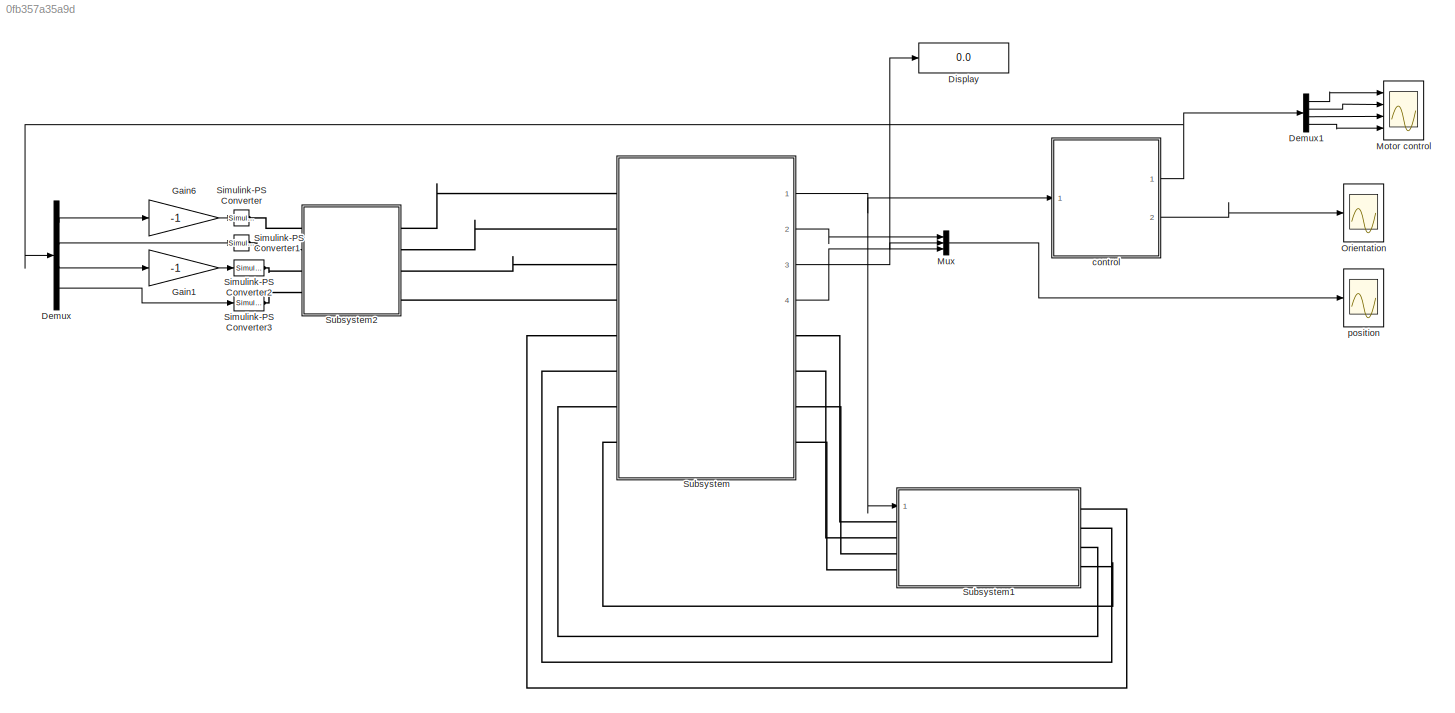
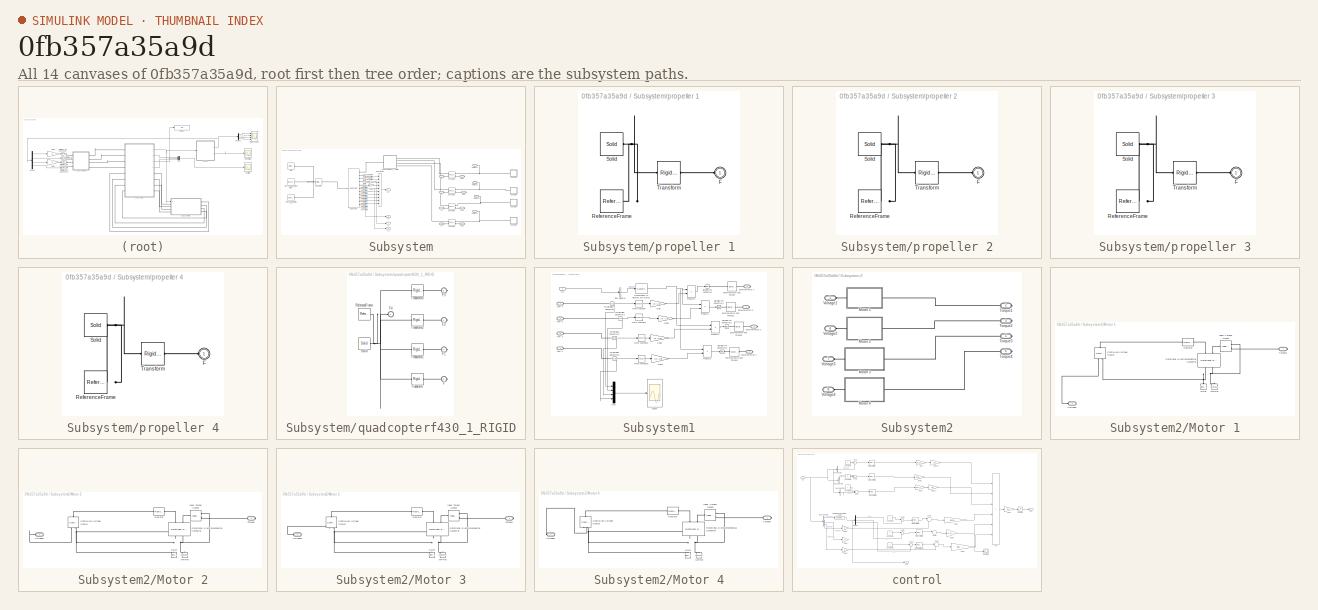
[diagram: thumbnail index - all 14 canvases of the model, root first then tree order]
MODEL slx_0fb357a35a9d
KIND model
CONFIG AbsTol = auto
CONFIG EnableMultiTasking = off
CONFIG FixedStep = auto
CONFIG MaxStep = auto
CONFIG MinStep = auto
CONFIG RelTol = 1e-3
CONFIG SampleTimeConstraint = Unconstrained
CONFIG Solver = VariableStepAuto
CONFIG SolverName = VariableStepAuto
CONFIG StartTime = 0.0
CONFIG StopTime = 30
WORKSPACE source: external: MATLAB File  (data not in archive)
BLOCK [Demux] Demux
  Ports = [1, 4]
BLOCK [Demux] Demux1
  Ports = [1, 4]
BLOCK [Display] Display
  Decimation = 1
  Ports = [1]
BLOCK [Gain] Gain1
  Gain = -1
BLOCK [Gain] Gain6
  Gain = -1
BLOCK [Scope] Motor control
  Floating = off
  NumInputPorts = 4
  Ports = [4]
  ScopeSpecificationString = Simulink.scopes.TimeScopeBlockCfg('CurrentConfiguration', extmgr.ConfigurationSet(extmgr.Configuration('Core','General UI',true),extmgr.Configuration('Core','Source UI',true),extmgr.Configuration('Sources','WiredSimulink',true,'DataLoggingVariableName','ScopeData2'),extmgr.Configuration('Visuals','Time Domain',true,'SerializedDisplays',{struct('MinYLimReal','-3.3646','MaxYLimReal','10.00000','YLab...<+3989ch>
BLOCK [Mux] Mux
  DisplayOption = bar
  Inputs = 3
  Ports = [3, 1]
BLOCK [Scope] Orientation
  Floating = off
  NumInputPorts = 1
  Ports = [1]
  ScopeSpecificationString = Simulink.scopes.TimeScopeBlockCfg('CurrentConfiguration', extmgr.ConfigurationSet(extmgr.Configuration('Core','General UI',true),extmgr.Configuration('Core','Source UI',true),extmgr.Configuration('Sources','WiredSimulink',true,'DataLoggingVariableName','ScopeData1'),extmgr.Configuration('Visuals','Time Domain',true,'PlotType','Line','SerializedDisplays',{struct('MinYLimReal','-0.03172','MaxYLimRea...<+1662ch>
BLOCK [Reference] Simulink-PS Converter  REF=nesl_utility/Simulink-PS
Converter
  Ports = [1, 0, 0, 0, 0, 0, 1]
  SourceBlock = nesl_utility/Simulink-PS\nConverter
  SourceProductBaseCode = SS
  SourceType = Simulink-PS\nConverter
BLOCK [Reference] Simulink-PS Converter1  REF=nesl_utility/Simulink-PS
Converter
  Ports = [1, 0, 0, 0, 0, 0, 1]
  SourceBlock = nesl_utility/Simulink-PS\nConverter
  SourceProductBaseCode = SS
  SourceType = Simulink-PS\nConverter
BLOCK [Reference] Simulink-PS Converter2  REF=nesl_utility/Simulink-PS
Converter
  Ports = [1, 0, 0, 0, 0, 0, 1]
  SourceBlock = nesl_utility/Simulink-PS\nConverter
  SourceProductBaseCode = SS
  SourceType = Simulink-PS\nConverter
BLOCK [Reference] Simulink-PS Converter3  REF=nesl_utility/Simulink-PS
Converter
  Ports = [1, 0, 0, 0, 0, 0, 1]
  SourceBlock = nesl_utility/Simulink-PS\nConverter
  SourceProductBaseCode = SS
  SourceType = Simulink-PS\nConverter
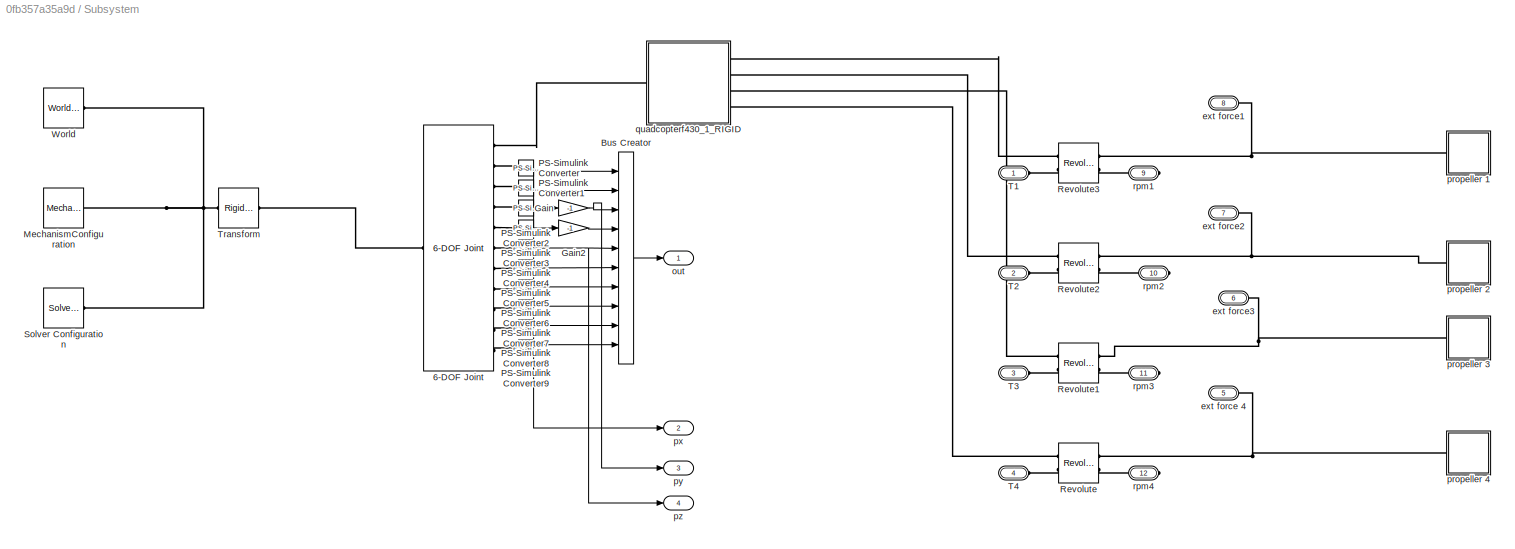
BLOCK [SubSystem] Subsystem
  Ports = [0, 4, 0, 0, 0, 8, 4]
  RequestExecContextInheritance = off
BLOCK [Reference] Subsystem/6-DOF Joint  REF=sm_lib/Joints/6-DOF Joint
  Ports = [0, 0, 0, 0, 0, 1, 11]
  SourceBlock = sm_lib/Joints/6-DOF Joint
  SourceProductBaseCode = MS
  SourceType = 6-DOF Joint
BLOCK [BusCreator] Subsystem/Bus Creator
  DisplayOption = bar
  InheritFromInputs = on
  Inputs = 10
  Ports = [10, 1]
BLOCK [Gain] Subsystem/Gain
  Gain = -1
BLOCK [Gain] Subsystem/Gain2
  Gain = -1
BLOCK [Reference] Subsystem/MechanismConfiguration  REF=sm_lib/Utilities/Mechanism
Configuration
  Ports = [0, 0, 0, 0, 0, 0, 1]
  SourceBlock = sm_lib/Utilities/Mechanism\nConfiguration
  SourceProductBaseCode = MS
  SourceType = Mechanism\nConfiguration
BLOCK [Reference] Subsystem/PS-Simulink Converter  REF=nesl_utility/PS-Simulink
Converter
  Ports = [0, 1, 0, 0, 0, 1]
  SourceBlock = nesl_utility/PS-Simulink\nConverter
  SourceProductBaseCode = SS
  SourceType = PS-Simulink\nConverter
BLOCK [Reference] Subsystem/PS-Simulink Converter1  REF=nesl_utility/PS-Simulink
Converter
  Ports = [0, 1, 0, 0, 0, 1]
  SourceBlock = nesl_utility/PS-Simulink\nConverter
  SourceProductBaseCode = SS
  SourceType = PS-Simulink\nConverter
BLOCK [Reference] Subsystem/PS-Simulink Converter2  REF=nesl_utility/PS-Simulink
Converter
  Ports = [0, 1, 0, 0, 0, 1]
  SourceBlock = nesl_utility/PS-Simulink\nConverter
  SourceProductBaseCode = SS
  SourceType = PS-Simulink\nConverter
BLOCK [Reference] Subsystem/PS-Simulink Converter3  REF=nesl_utility/PS-Simulink
Converter
  Ports = [0, 1, 0, 0, 0, 1]
  SourceBlock = nesl_utility/PS-Simulink\nConverter
  SourceProductBaseCode = SS
  SourceType = PS-Simulink\nConverter
BLOCK [Reference] Subsystem/PS-Simulink Converter4  REF=nesl_utility/PS-Simulink
Converter
  Ports = [0, 1, 0, 0, 0, 1]
  SourceBlock = nesl_utility/PS-Simulink\nConverter
  SourceProductBaseCode = SS
  SourceType = PS-Simulink\nConverter
BLOCK [Reference] Subsystem/PS-Simulink Converter5  REF=nesl_utility/PS-Simulink
Converter
  Ports = [0, 1, 0, 0, 0, 1]
  SourceBlock = nesl_utility/PS-Simulink\nConverter
  SourceProductBaseCode = SS
  SourceType = PS-Simulink\nConverter
BLOCK [Reference] Subsystem/PS-Simulink Converter6  REF=nesl_utility/PS-Simulink
Converter
  Ports = [0, 1, 0, 0, 0, 1]
  SourceBlock = nesl_utility/PS-Simulink\nConverter
  SourceProductBaseCode = SS
  SourceType = PS-Simulink\nConverter
BLOCK [Reference] Subsystem/PS-Simulink Converter7  REF=nesl_utility/PS-Simulink
Converter
  Ports = [0, 1, 0, 0, 0, 1]
  SourceBlock = nesl_utility/PS-Simulink\nConverter
  SourceProductBaseCode = SS
  SourceType = PS-Simulink\nConverter
BLOCK [Reference] Subsystem/PS-Simulink Converter8  REF=nesl_utility/PS-Simulink
Converter
  Ports = [0, 1, 0, 0, 0, 1]
  SourceBlock = nesl_utility/PS-Simulink\nConverter
  SourceProductBaseCode = SS
  SourceType = PS-Simulink\nConverter
BLOCK [Reference] Subsystem/PS-Simulink Converter9  REF=nesl_utility/PS-Simulink
Converter
  Ports = [0, 1, 0, 0, 0, 1]
  SourceBlock = nesl_utility/PS-Simulink\nConverter
  SourceProductBaseCode = SS
  SourceType = PS-Simulink\nConverter
BLOCK [Reference] Subsystem/Revolute  REF=sm_lib/Joints/Revolute Joint
  Ports = [0, 0, 0, 0, 0, 2, 2]
  SourceBlock = sm_lib/Joints/Revolute Joint
  SourceProductBaseCode = MS
  SourceType = Revolute Joint
BLOCK [Reference] Subsystem/Revolute1  REF=sm_lib/Joints/Revolute Joint
  Ports = [0, 0, 0, 0, 0, 2, 2]
  SourceBlock = sm_lib/Joints/Revolute Joint
  SourceProductBaseCode = MS
  SourceType = Revolute Joint
BLOCK [Reference] Subsystem/Revolute2  REF=sm_lib/Joints/Revolute Joint
  Ports = [0, 0, 0, 0, 0, 2, 2]
  SourceBlock = sm_lib/Joints/Revolute Joint
  SourceProductBaseCode = MS
  SourceType = Revolute Joint
BLOCK [Reference] Subsystem/Revolute3  REF=sm_lib/Joints/Revolute Joint
  Ports = [0, 0, 0, 0, 0, 2, 2]
  SourceBlock = sm_lib/Joints/Revolute Joint
  SourceProductBaseCode = MS
  SourceType = Revolute Joint
BLOCK [Reference] Subsystem/Solver Configuration  REF=nesl_utility/Solver
Configuration
  Ports = [0, 0, 0, 0, 0, 0, 1]
  SourceBlock = nesl_utility/Solver\nConfiguration
  SourceProductBaseCode = SS
  SourceType = Solver\nConfiguration
BLOCK [PMIOPort] Subsystem/T1
  Side = Left
BLOCK [PMIOPort] Subsystem/T2
  Port = 2
  Side = Left
BLOCK [PMIOPort] Subsystem/T3
  Port = 3
  Side = Left
BLOCK [PMIOPort] Subsystem/T4
  Port = 4
  Side = Left
BLOCK [Reference] Subsystem/Transform  REF=sm_lib/Frames and
Transforms/Rigid
Transform
  Ports = [0, 0, 0, 0, 0, 1, 1]
  SourceBlock = sm_lib/Frames and\nTransforms/Rigid\nTransform
  SourceProductBaseCode = MS
  SourceType = Rigid\nTransform
BLOCK [Reference] Subsystem/World  REF=sm_lib/Frames and
Transforms/World Frame
  Ports = [0, 0, 0, 0, 0, 0, 1]
  SourceBlock = sm_lib/Frames and\nTransforms/World Frame
  SourceProductBaseCode = MS
  SourceType = World Frame
BLOCK [PMIOPort] Subsystem/ext force 4
  Port = 5
  Side = Left
BLOCK [PMIOPort] Subsystem/ext force1
  Port = 8
  Side = Left
BLOCK [PMIOPort] Subsystem/ext force2
  Port = 7
  Side = Left
BLOCK [PMIOPort] Subsystem/ext force3
  Port = 6
  Side = Left
BLOCK [Outport] Subsystem/out
BLOCK [SubSystem] Subsystem/propeller 1
  Ports = [0, 0, 0, 0, 0, 1]
  RequestExecContextInheritance = off
BLOCK [PMIOPort] Subsystem/propeller 1/F
  Side = Left
BLOCK [Reference] Subsystem/propeller 1/ReferenceFrame  REF=sm_lib/Frames and
Transforms/Reference
Frame
  Ports = [0, 0, 0, 0, 0, 0, 1]
  SourceBlock = sm_lib/Frames and\nTransforms/Reference\nFrame
  SourceProductBaseCode = MS
  SourceType = Reference\nFrame
BLOCK [Reference] Subsystem/propeller 1/Solid  REF=sm_lib/Body Elements/Solid
  Ports = [0, 0, 0, 0, 0, 0, 1]
  SourceBlock = sm_lib/Body Elements/Solid
  SourceProductBaseCode = MS
  SourceType = File Solid
BLOCK [Reference] Subsystem/propeller 1/Transform  REF=sm_lib/Frames and
Transforms/Rigid
Transform
  Ports = [0, 0, 0, 0, 0, 1, 1]
  SourceBlock = sm_lib/Frames and\nTransforms/Rigid\nTransform
  SourceProductBaseCode = MS
  SourceType = Rigid\nTransform
BLOCK [SubSystem] Subsystem/propeller 2
  Ports = [0, 0, 0, 0, 0, 1]
  RequestExecContextInheritance = off
BLOCK [PMIOPort] Subsystem/propeller 2/F
  Side = Left
BLOCK [Reference] Subsystem/propeller 2/ReferenceFrame  REF=sm_lib/Frames and
Transforms/Reference
Frame
  Ports = [0, 0, 0, 0, 0, 0, 1]
  SourceBlock = sm_lib/Frames and\nTransforms/Reference\nFrame
  SourceProductBaseCode = MS
  SourceType = Reference\nFrame
BLOCK [Reference] Subsystem/propeller 2/Solid  REF=sm_lib/Body Elements/Solid
  Ports = [0, 0, 0, 0, 0, 0, 1]
  SourceBlock = sm_lib/Body Elements/Solid
  SourceProductBaseCode = MS
  SourceType = File Solid
BLOCK [Reference] Subsystem/propeller 2/Transform  REF=sm_lib/Frames and
Transforms/Rigid
Transform
  Ports = [0, 0, 0, 0, 0, 1, 1]
  SourceBlock = sm_lib/Frames and\nTransforms/Rigid\nTransform
  SourceProductBaseCode = MS
  SourceType = Rigid\nTransform
BLOCK [SubSystem] Subsystem/propeller 3
  Ports = [0, 0, 0, 0, 0, 1]
  RequestExecContextInheritance = off
BLOCK [PMIOPort] Subsystem/propeller 3/F
  Side = Left
BLOCK [Reference] Subsystem/propeller 3/ReferenceFrame  REF=sm_lib/Frames and
Transforms/Reference
Frame
  Ports = [0, 0, 0, 0, 0, 0, 1]
  SourceBlock = sm_lib/Frames and\nTransforms/Reference\nFrame
  SourceProductBaseCode = MS
  SourceType = Reference\nFrame
BLOCK [Reference] Subsystem/propeller 3/Solid  REF=sm_lib/Body Elements/Solid
  Ports = [0, 0, 0, 0, 0, 0, 1]
  SourceBlock = sm_lib/Body Elements/Solid
  SourceProductBaseCode = MS
  SourceType = File Solid
BLOCK [Reference] Subsystem/propeller 3/Transform  REF=sm_lib/Frames and
Transforms/Rigid
Transform
  Ports = [0, 0, 0, 0, 0, 1, 1]
  SourceBlock = sm_lib/Frames and\nTransforms/Rigid\nTransform
  SourceProductBaseCode = MS
  SourceType = Rigid\nTransform
BLOCK [SubSystem] Subsystem/propeller 4
  Ports = [0, 0, 0, 0, 0, 1]
  RequestExecContextInheritance = off
BLOCK [PMIOPort] Subsystem/propeller 4/F
  Side = Left
BLOCK [Reference] Subsystem/propeller 4/ReferenceFrame  REF=sm_lib/Frames and
Transforms/Reference
Frame
  Ports = [0, 0, 0, 0, 0, 0, 1]
  SourceBlock = sm_lib/Frames and\nTransforms/Reference\nFrame
  SourceProductBaseCode = MS
  SourceType = Reference\nFrame
BLOCK [Reference] Subsystem/propeller 4/Solid  REF=sm_lib/Body Elements/Solid
  Ports = [0, 0, 0, 0, 0, 0, 1]
  SourceBlock = sm_lib/Body Elements/Solid
  SourceProductBaseCode = MS
  SourceType = File Solid
BLOCK [Reference] Subsystem/propeller 4/Transform  REF=sm_lib/Frames and
Transforms/Rigid
Transform
  Ports = [0, 0, 0, 0, 0, 1, 1]
  SourceBlock = sm_lib/Frames and\nTransforms/Rigid\nTransform
  SourceProductBaseCode = MS
  SourceType = Rigid\nTransform
BLOCK [Outport] Subsystem/px
  Port = 2
BLOCK [Outport] Subsystem/py
  Port = 3
BLOCK [Outport] Subsystem/pz
  Port = 4
BLOCK [SubSystem] Subsystem/quadcopterf430_1_RIGID
  Ports = [0, 0, 0, 0, 0, 1, 4]
  RequestExecContextInheritance = off
BLOCK [PMIOPort] Subsystem/quadcopterf430_1_RIGID/F
  Port = 5
  Side = Right
BLOCK [PMIOPort] Subsystem/quadcopterf430_1_RIGID/F1
  Port = 4
  Side = Right
BLOCK [PMIOPort] Subsystem/quadcopterf430_1_RIGID/F2
  Port = 3
  Side = Right
BLOCK [PMIOPort] Subsystem/quadcopterf430_1_RIGID/F3
  Port = 2
  Side = Right
BLOCK [PMIOPort] Subsystem/quadcopterf430_1_RIGID/F4
  Side = Left
BLOCK [Reference] Subsystem/quadcopterf430_1_RIGID/ReferenceFrame  REF=sm_lib/Frames and
Transforms/Reference
Frame
  Ports = [0, 0, 0, 0, 0, 0, 1]
  SourceBlock = sm_lib/Frames and\nTransforms/Reference\nFrame
  SourceProductBaseCode = MS
  SourceType = Reference\nFrame
BLOCK [Reference] Subsystem/quadcopterf430_1_RIGID/Solid  REF=sm_lib/Body Elements/Solid
  Ports = [0, 0, 0, 0, 0, 0, 1]
  SourceBlock = sm_lib/Body Elements/Solid
  SourceProductBaseCode = MS
  SourceType = File Solid
BLOCK [Reference] Subsystem/quadcopterf430_1_RIGID/Transform  REF=sm_lib/Frames and
Transforms/Rigid
Transform
  Ports = [0, 0, 0, 0, 0, 1, 1]
  SourceBlock = sm_lib/Frames and\nTransforms/Rigid\nTransform
  SourceProductBaseCode = MS
  SourceType = Rigid\nTransform
BLOCK [Reference] Subsystem/quadcopterf430_1_RIGID/Transform1  REF=sm_lib/Frames and
Transforms/Rigid
Transform
  Ports = [0, 0, 0, 0, 0, 1, 1]
  SourceBlock = sm_lib/Frames and\nTransforms/Rigid\nTransform
  SourceProductBaseCode = MS
  SourceType = Rigid\nTransform
BLOCK [Reference] Subsystem/quadcopterf430_1_RIGID/Transform2  REF=sm_lib/Frames and
Transforms/Rigid
Transform
  Ports = [0, 0, 0, 0, 0, 1, 1]
  SourceBlock = sm_lib/Frames and\nTransforms/Rigid\nTransform
  SourceProductBaseCode = MS
  SourceType = Rigid\nTransform
BLOCK [Reference] Subsystem/quadcopterf430_1_RIGID/Transform3  REF=sm_lib/Frames and
Transforms/Rigid
Transform
  Ports = [0, 0, 0, 0, 0, 1, 1]
  SourceBlock = sm_lib/Frames and\nTransforms/Rigid\nTransform
  SourceProductBaseCode = MS
  SourceType = Rigid\nTransform
BLOCK [PMIOPort] Subsystem/rpm1
  Port = 9
  Side = Right
BLOCK [PMIOPort] Subsystem/rpm2
  Port = 10
  Side = Right
BLOCK [PMIOPort] Subsystem/rpm3
  Port = 11
  Side = Right
BLOCK [PMIOPort] Subsystem/rpm4
  Port = 12
  Side = Right
BLOCK [SubSystem] Subsystem1
  Ports = [1, 0, 0, 0, 0, 4, 4]
  RequestExecContextInheritance = off
BLOCK [BusSelector] Subsystem1/Bus Selector
  OutputSignals = signal7
  Ports = [1, 1]
BLOCK [PMIOPort] Subsystem1/External Force 1
  Port = 8
  Side = Right
BLOCK [PMIOPort] Subsystem1/External Force 2
  Port = 5
  Side = Right
BLOCK [PMIOPort] Subsystem1/External Force 3
  Port = 3
  Side = Right
BLOCK [PMIOPort] Subsystem1/External Force 4
  Side = Right
BLOCK [Reference] Subsystem1/External Force and Torque  REF=sm_lib/Forces and
Torques/External Force
and Torque
  Ports = [0, 0, 0, 0, 0, 1, 1]
  SourceBlock = sm_lib/Forces and\nTorques/External Force\nand Torque
  SourceProductBaseCode = MS
  SourceType = External Force\nand Torque
BLOCK [Reference] Subsystem1/External Force and Torque1  REF=sm_lib/Forces and
Torques/External Force
and Torque
  Ports = [0, 0, 0, 0, 0, 1, 1]
  SourceBlock = sm_lib/Forces and\nTorques/External Force\nand Torque
  SourceProductBaseCode = MS
  SourceType = External Force\nand Torque
BLOCK [Reference] Subsystem1/External Force and Torque2  REF=sm_lib/Forces and
Torques/External Force
and Torque
  Ports = [0, 0, 0, 0, 0, 1, 1]
  SourceBlock = sm_lib/Forces and\nTorques/External Force\nand Torque
  SourceProductBaseCode = MS
  SourceType = External Force\nand Torque
BLOCK [Reference] Subsystem1/External Force and Torque3  REF=sm_lib/Forces and
Torques/External Force
and Torque
  Ports = [0, 0, 0, 0, 0, 1, 1]
  SourceBlock = sm_lib/Forces and\nTorques/External Force\nand Torque
  SourceProductBaseCode = MS
  SourceType = External Force\nand Torque
BLOCK [Gain] Subsystem1/Gain
  Gain = [0 -1 0]
BLOCK [Gain] Subsystem1/Gain1
  Gain = [0 -1 0]
BLOCK [Gain] Subsystem1/Gain2
  Gain = [0 -1 0]
BLOCK [Gain] Subsystem1/Gain3
  Gain = [0 -1 0]
BLOCK [Inport] Subsystem1/In1
BLOCK [Math] Subsystem1/Math Function
  Operator = square
  Ports = [1, 1]
BLOCK [Math] Subsystem1/Math Function1
  Operator = square
  Ports = [1, 1]
BLOCK [Math] Subsystem1/Math Function2
  Operator = square
  Ports = [1, 1]
BLOCK [Math] Subsystem1/Math Function3
  Operator = square
  Ports = [1, 1]
BLOCK [Mux] Subsystem1/Mux
  DisplayOption = bar
  Ports = [4, 1]
BLOCK [Reference] Subsystem1/PS-Simulink Converter  REF=nesl_utility/PS-Simulink
Converter
  Ports = [0, 1, 0, 0, 0, 1]
  SourceBlock = nesl_utility/PS-Simulink\nConverter
  SourceProductBaseCode = SS
  SourceType = PS-Simulink\nConverter
BLOCK [Reference] Subsystem1/PS-Simulink Converter1  REF=nesl_utility/PS-Simulink
Converter
  Ports = [0, 1, 0, 0, 0, 1]
  SourceBlock = nesl_utility/PS-Simulink\nConverter
  SourceProductBaseCode = SS
  SourceType = PS-Simulink\nConverter
BLOCK [Reference] Subsystem1/PS-Simulink Converter2  REF=nesl_utility/PS-Simulink
Converter
  Ports = [0, 1, 0, 0, 0, 1]
  SourceBlock = nesl_utility/PS-Simulink\nConverter
  SourceProductBaseCode = SS
  SourceType = PS-Simulink\nConverter
BLOCK [Reference] Subsystem1/PS-Simulink Converter3  REF=nesl_utility/PS-Simulink
Converter
  Ports = [0, 1, 0, 0, 0, 1]
  SourceBlock = nesl_utility/PS-Simulink\nConverter
  SourceProductBaseCode = SS
  SourceType = PS-Simulink\nConverter
BLOCK [Product] Subsystem1/Product1
  Multiplication = Matrix(*)
  Ports = [2, 1]
BLOCK [Product] Subsystem1/Product2
  Multiplication = Matrix(*)
  Ports = [2, 1]
BLOCK [Product] Subsystem1/Product3
  Multiplication = Matrix(*)
  Ports = [2, 1]
BLOCK [Product] Subsystem1/Product4
  Multiplication = Matrix(*)
  Ports = [2, 1]
BLOCK [Reference] Subsystem1/Quaternions to Direction Cosine Matrix  REF=sharedtransform/Quaternions to 
Direction Cosine Matrix
  Ports = [1, 1]
  SourceBlock = sharedtransform/Quaternions to \nDirection Cosine Matrix
  SourceProductBaseCode = AE,PW,MT,VE,VP
  SourceType = Quaternion2DCM
BLOCK [Scope] Subsystem1/Scope
  Floating = off
  NumInputPorts = 1
  Ports = [1]
  ScopeSpecificationString = Simulink.scopes.TimeScopeBlockCfg('CurrentConfiguration', extmgr.ConfigurationSet(extmgr.Configuration('Core','General UI',true),extmgr.Configuration('Core','Source UI',true),extmgr.Configuration('Sources','WiredSimulink',true,'DataLoggingVariableName','ScopeData1'),extmgr.Configuration('Visuals','Time Domain',true,'SerializedDisplays',{struct('MinYLimReal','-2.50023','MaxYLimReal','2.5','YLabelRe...<+1567ch>
BLOCK [Reference] Subsystem1/Simulink-PS Converter  REF=nesl_utility/Simulink-PS
Converter
  Ports = [1, 0, 0, 0, 0, 0, 1]
  SourceBlock = nesl_utility/Simulink-PS\nConverter
  SourceProductBaseCode = SS
  SourceType = Simulink-PS\nConverter
BLOCK [Reference] Subsystem1/Simulink-PS Converter1  REF=nesl_utility/Simulink-PS
Converter
  Ports = [1, 0, 0, 0, 0, 0, 1]
  SourceBlock = nesl_utility/Simulink-PS\nConverter
  SourceProductBaseCode = SS
  SourceType = Simulink-PS\nConverter
BLOCK [Reference] Subsystem1/Simulink-PS Converter2  REF=nesl_utility/Simulink-PS
Converter
  Ports = [1, 0, 0, 0, 0, 0, 1]
  SourceBlock = nesl_utility/Simulink-PS\nConverter
  SourceProductBaseCode = SS
  SourceType = Simulink-PS\nConverter
BLOCK [Reference] Subsystem1/Simulink-PS Converter3  REF=nesl_utility/Simulink-PS
Converter
  Ports = [1, 0, 0, 0, 0, 0, 1]
  SourceBlock = nesl_utility/Simulink-PS\nConverter
  SourceProductBaseCode = SS
  SourceType = Simulink-PS\nConverter
BLOCK [PMIOPort] Subsystem1/rpm 1
  Port = 2
  Side = Left
BLOCK [PMIOPort] Subsystem1/rpm 2
  Port = 4
  Side = Left
BLOCK [PMIOPort] Subsystem1/rpm 3
  Port = 6
  Side = Left
BLOCK [PMIOPort] Subsystem1/rpm 4
  Port = 7
  Side = Left
BLOCK [SubSystem] Subsystem2
  Ports = [0, 0, 0, 0, 0, 4, 4]
  RequestExecContextInheritance = off
BLOCK [PMIOPort] Subsystem2/ Torque1
  Port = 2
  Side = Right
BLOCK [PMIOPort] Subsystem2/ Torque2
  Port = 3
  Side = Right
BLOCK [PMIOPort] Subsystem2/ Torque3
  Port = 5
  Side = Right
BLOCK [PMIOPort] Subsystem2/ Torque4
  Port = 6
  Side = Right
BLOCK [SubSystem] Subsystem2/Motor 1
  Ports = [0, 0, 0, 0, 0, 1, 1]
  RequestExecContextInheritance = off
BLOCK [PMIOPort] Subsystem2/Motor 1/ Torque1
  Side = Right
BLOCK [Reference] Subsystem2/Motor 1/Controlled Voltage Source  REF=fl_lib/Electrical/Electrical Sources/Controlled Voltage
Source
  Ports = [0, 0, 0, 0, 0, 1, 2]
  SourceBlock = fl_lib/Electrical/Electrical Sources/Controlled Voltage\nSource
  SourceProductBaseCode = SS
  SourceType = Controlled Voltage\nSource
BLOCK [Reference] Subsystem2/Motor 1/ERef  REF=fl_lib/Electrical/Electrical Elements/Electrical Reference
  Ports = [0, 0, 0, 0, 0, 1]
  SourceBlock = fl_lib/Electrical/Electrical Elements/Electrical Reference
  SourceProductBaseCode = MT,SS
  SourceType = Electrical Reference
BLOCK [Reference] Subsystem2/Motor 1/Ideal Torque Sensor  REF=fl_lib/Mechanical/Mechanical Sensors/Ideal Torque Sensor
  Ports = [0, 0, 0, 0, 0, 1, 2]
  SourceBlock = fl_lib/Mechanical/Mechanical Sensors/Ideal Torque Sensor
  SourceProductBaseCode = SS
  SourceType = Ideal Torque Sensor
BLOCK [Reference] Subsystem2/Motor 1/MRRef  REF=fl_lib/Mechanical/Rotational Elements/Mechanical
Rotational Reference
  Ports = [0, 0, 0, 0, 0, 1]
  SourceBlock = fl_lib/Mechanical/Rotational Elements/Mechanical\nRotational Reference
  SourceProductBaseCode = MT,SS
  SourceType = Mechanical\nRotational Reference
BLOCK [Reference] Subsystem2/Motor 1/Resistor  REF=ee_lib/Passive/Resistor
  Ports = [0, 0, 0, 0, 0, 1, 1]
  SourceBlock = ee_lib/Passive/Resistor
  SourceProductBaseCode = PS
  SourceType = Resistor
BLOCK [Reference] Subsystem2/Motor 1/Rotational Electromechanical Converter  REF=fl_lib/Electrical/Electrical Elements/Rotational
Electromechanical
Converter
  Ports = [0, 0, 0, 0, 0, 2, 2]
  SourceBlock = fl_lib/Electrical/Electrical Elements/Rotational\nElectromechanical\nConverter
  SourceProductBaseCode = SS
  SourceType = Rotational\nElectromechanical\nConverter
BLOCK [PMIOPort] Subsystem2/Motor 1/Voltage1
  Port = 2
  Side = Left
BLOCK [SubSystem] Subsystem2/Motor 2
  Ports = [0, 0, 0, 0, 0, 1, 1]
  RequestExecContextInheritance = off
BLOCK [PMIOPort] Subsystem2/Motor 2/ Torque2
  Side = Right
BLOCK [Reference] Subsystem2/Motor 2/Controlled Voltage Source  REF=fl_lib/Electrical/Electrical Sources/Controlled Voltage
Source
  Ports = [0, 0, 0, 0, 0, 1, 2]
  SourceBlock = fl_lib/Electrical/Electrical Sources/Controlled Voltage\nSource
  SourceProductBaseCode = SS
  SourceType = Controlled Voltage\nSource
BLOCK [Reference] Subsystem2/Motor 2/ERef  REF=fl_lib/Electrical/Electrical Elements/Electrical Reference
  Ports = [0, 0, 0, 0, 0, 1]
  SourceBlock = fl_lib/Electrical/Electrical Elements/Electrical Reference
  SourceProductBaseCode = MT,SS
  SourceType = Electrical Reference
BLOCK [Reference] Subsystem2/Motor 2/Ideal Torque Sensor  REF=fl_lib/Mechanical/Mechanical Sensors/Ideal Torque Sensor
  Ports = [0, 0, 0, 0, 0, 1, 2]
  SourceBlock = fl_lib/Mechanical/Mechanical Sensors/Ideal Torque Sensor
  SourceProductBaseCode = SS
  SourceType = Ideal Torque Sensor
BLOCK [Reference] Subsystem2/Motor 2/MRRef  REF=fl_lib/Mechanical/Rotational Elements/Mechanical
Rotational Reference
  Ports = [0, 0, 0, 0, 0, 1]
  SourceBlock = fl_lib/Mechanical/Rotational Elements/Mechanical\nRotational Reference
  SourceProductBaseCode = MT,SS
  SourceType = Mechanical\nRotational Reference
BLOCK [Reference] Subsystem2/Motor 2/Resistor  REF=ee_lib/Passive/Resistor
  Ports = [0, 0, 0, 0, 0, 1, 1]
  SourceBlock = ee_lib/Passive/Resistor
  SourceProductBaseCode = PS
  SourceType = Resistor
BLOCK [Reference] Subsystem2/Motor 2/Rotational Electromechanical Converter  REF=fl_lib/Electrical/Electrical Elements/Rotational
Electromechanical
Converter
  Ports = [0, 0, 0, 0, 0, 2, 2]
  SourceBlock = fl_lib/Electrical/Electrical Elements/Rotational\nElectromechanical\nConverter
  SourceProductBaseCode = SS
  SourceType = Rotational\nElectromechanical\nConverter
BLOCK [PMIOPort] Subsystem2/Motor 2/Voltage2
  Port = 2
  Side = Left
BLOCK [SubSystem] Subsystem2/Motor 3
  Ports = [0, 0, 0, 0, 0, 1, 1]
  RequestExecContextInheritance = off
BLOCK [PMIOPort] Subsystem2/Motor 3/ Torque3
  Side = Right
BLOCK [Reference] Subsystem2/Motor 3/Controlled Voltage Source  REF=fl_lib/Electrical/Electrical Sources/Controlled Voltage
Source
  Ports = [0, 0, 0, 0, 0, 1, 2]
  SourceBlock = fl_lib/Electrical/Electrical Sources/Controlled Voltage\nSource
  SourceProductBaseCode = SS
  SourceType = Controlled Voltage\nSource
BLOCK [Reference] Subsystem2/Motor 3/ERef  REF=fl_lib/Electrical/Electrical Elements/Electrical Reference
  Ports = [0, 0, 0, 0, 0, 1]
  SourceBlock = fl_lib/Electrical/Electrical Elements/Electrical Reference
  SourceProductBaseCode = MT,SS
  SourceType = Electrical Reference
BLOCK [Reference] Subsystem2/Motor 3/Ideal Torque Sensor  REF=fl_lib/Mechanical/Mechanical Sensors/Ideal Torque Sensor
  Ports = [0, 0, 0, 0, 0, 1, 2]
  SourceBlock = fl_lib/Mechanical/Mechanical Sensors/Ideal Torque Sensor
  SourceProductBaseCode = SS
  SourceType = Ideal Torque Sensor
BLOCK [Reference] Subsystem2/Motor 3/MRRef  REF=fl_lib/Mechanical/Rotational Elements/Mechanical
Rotational Reference
  Ports = [0, 0, 0, 0, 0, 1]
  SourceBlock = fl_lib/Mechanical/Rotational Elements/Mechanical\nRotational Reference
  SourceProductBaseCode = MT,SS
  SourceType = Mechanical\nRotational Reference
BLOCK [Reference] Subsystem2/Motor 3/Resistor  REF=ee_lib/Passive/Resistor
  Ports = [0, 0, 0, 0, 0, 1, 1]
  SourceBlock = ee_lib/Passive/Resistor
  SourceProductBaseCode = PS
  SourceType = Resistor
BLOCK [Reference] Subsystem2/Motor 3/Rotational Electromechanical Converter  REF=fl_lib/Electrical/Electrical Elements/Rotational
Electromechanical
Converter
  Ports = [0, 0, 0, 0, 0, 2, 2]
  SourceBlock = fl_lib/Electrical/Electrical Elements/Rotational\nElectromechanical\nConverter
  SourceProductBaseCode = SS
  SourceType = Rotational\nElectromechanical\nConverter
BLOCK [PMIOPort] Subsystem2/Motor 3/Voltage3
  Port = 2
  Side = Left
BLOCK [SubSystem] Subsystem2/Motor 4
  Ports = [0, 0, 0, 0, 0, 1, 1]
  RequestExecContextInheritance = off
BLOCK [PMIOPort] Subsystem2/Motor 4/ Torque4
  Side = Right
BLOCK [Reference] Subsystem2/Motor 4/Controlled Voltage Source  REF=fl_lib/Electrical/Electrical Sources/Controlled Voltage
Source
  Ports = [0, 0, 0, 0, 0, 1, 2]
  SourceBlock = fl_lib/Electrical/Electrical Sources/Controlled Voltage\nSource
  SourceProductBaseCode = SS
  SourceType = Controlled Voltage\nSource
BLOCK [Reference] Subsystem2/Motor 4/ERef  REF=fl_lib/Electrical/Electrical Elements/Electrical Reference
  Ports = [0, 0, 0, 0, 0, 1]
  SourceBlock = fl_lib/Electrical/Electrical Elements/Electrical Reference
  SourceProductBaseCode = MT,SS
  SourceType = Electrical Reference
BLOCK [Reference] Subsystem2/Motor 4/Ideal Torque Sensor  REF=fl_lib/Mechanical/Mechanical Sensors/Ideal Torque Sensor
  Ports = [0, 0, 0, 0, 0, 1, 2]
  SourceBlock = fl_lib/Mechanical/Mechanical Sensors/Ideal Torque Sensor
  SourceProductBaseCode = SS
  SourceType = Ideal Torque Sensor
BLOCK [Reference] Subsystem2/Motor 4/MRRef  REF=fl_lib/Mechanical/Rotational Elements/Mechanical
Rotational Reference
  Ports = [0, 0, 0, 0, 0, 1]
  SourceBlock = fl_lib/Mechanical/Rotational Elements/Mechanical\nRotational Reference
  SourceProductBaseCode = MT,SS
  SourceType = Mechanical\nRotational Reference
BLOCK [Reference] Subsystem2/Motor 4/Resistor  REF=ee_lib/Passive/Resistor
  Ports = [0, 0, 0, 0, 0, 1, 1]
  SourceBlock = ee_lib/Passive/Resistor
  SourceProductBaseCode = PS
  SourceType = Resistor
BLOCK [Reference] Subsystem2/Motor 4/Rotational Electromechanical Converter  REF=fl_lib/Electrical/Electrical Elements/Rotational
Electromechanical
Converter
  Ports = [0, 0, 0, 0, 0, 2, 2]
  SourceBlock = fl_lib/Electrical/Electrical Elements/Rotational\nElectromechanical\nConverter
  SourceProductBaseCode = SS
  SourceType = Rotational\nElectromechanical\nConverter
BLOCK [PMIOPort] Subsystem2/Motor 4/Voltage4
  Port = 2
  Side = Left
BLOCK [PMIOPort] Subsystem2/Voltage1
  Side = Left
BLOCK [PMIOPort] Subsystem2/Voltage2
  Port = 4
  Side = Left
BLOCK [PMIOPort] Subsystem2/Voltage3
  Port = 7
  Side = Left
BLOCK [PMIOPort] Subsystem2/Voltage4
  Port = 8
  Side = Left
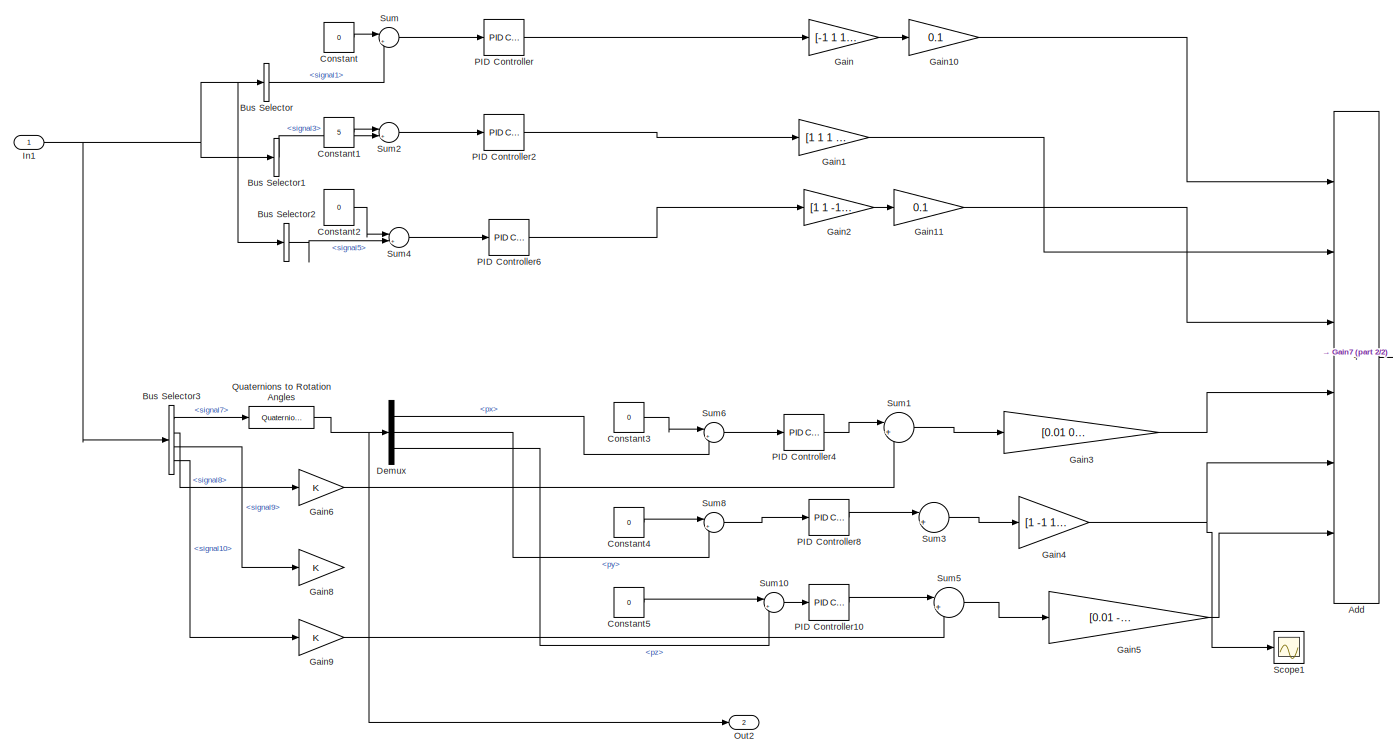
[diagram: control - part 1/2, most of the canvas]
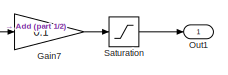
[diagram: control - part 2/2, middle right region]
BLOCK [SubSystem] control
  Ports = [1, 2]
  RequestExecContextInheritance = off
BLOCK [Sum] control/Add
  IconShape = rectangular
  Inputs = ++++++
  Ports = [6, 1]
BLOCK [BusSelector] control/Bus Selector
  OutputSignals = signal1
  Ports = [1, 1]
BLOCK [BusSelector] control/Bus Selector1
  OutputSignals = signal3
  Ports = [1, 1]
BLOCK [BusSelector] control/Bus Selector2
  OutputSignals = signal5
  Ports = [1, 1]
BLOCK [BusSelector] control/Bus Selector3
  OutputSignals = signal7,signal8,signal9,signal10
  Ports = [1, 4]
BLOCK [Constant] control/Constant
  Value = 0
BLOCK [Constant] control/Constant1
  Value = 5
BLOCK [Constant] control/Constant2
  Value = 0
BLOCK [Constant] control/Constant3
  Value = 0
BLOCK [Constant] control/Constant4
  Value = 0
BLOCK [Constant] control/Constant5
  Value = 0
BLOCK [Demux] control/Demux
  Outputs = 3
  Ports = [1, 3]
BLOCK [Gain] control/Gain
  Gain = [-1 1 1 -1]
BLOCK [Gain] control/Gain1
  Gain = [1 1 1 1]
BLOCK [Gain] control/Gain10
  Gain = 0.1
BLOCK [Gain] control/Gain11
  Gain = 0.1
BLOCK [Gain] control/Gain2
  Gain = [1 1 -1 -1]
BLOCK [Gain] control/Gain3
  Gain = [0.01 0.01 -0.01 -0.01]
BLOCK [Gain] control/Gain4
  Gain = [1 -1 1 -1]
BLOCK [Gain] control/Gain5
  Gain = [0.01 -0.01 -0.01 0.01]
BLOCK [Gain] control/Gain6
BLOCK [Gain] control/Gain7
  Gain = 0.1
BLOCK [Gain] control/Gain8
BLOCK [Gain] control/Gain9
BLOCK [Inport] control/In1
BLOCK [Outport] control/Out1
BLOCK [Outport] control/Out2
  Port = 2
BLOCK [Reference] control/PID Controller  REF=simulink/Continuous/PID Controller
  Ports = [1, 1]
  SourceBlock = simulink/Continuous/PID Controller
  SourceProductBaseCode = SL
  SourceType = PID 1dof
BLOCK [Reference] control/PID Controller10  REF=simulink/Continuous/PID Controller
  Ports = [1, 1]
  SourceBlock = simulink/Continuous/PID Controller
  SourceProductBaseCode = SL
  SourceType = PID 1dof
BLOCK [Reference] control/PID Controller2  REF=simulink/Continuous/PID Controller
  Ports = [1, 1]
  SourceBlock = simulink/Continuous/PID Controller
  SourceProductBaseCode = SL
  SourceType = PID 1dof
BLOCK [Reference] control/PID Controller4  REF=simulink/Continuous/PID Controller
  Ports = [1, 1]
  SourceBlock = simulink/Continuous/PID Controller
  SourceProductBaseCode = SL
  SourceType = PID 1dof
BLOCK [Reference] control/PID Controller6  REF=simulink/Continuous/PID Controller
  Ports = [1, 1]
  SourceBlock = simulink/Continuous/PID Controller
  SourceProductBaseCode = SL
  SourceType = PID 1dof
BLOCK [Reference] control/PID Controller8  REF=simulink/Continuous/PID Controller
  Ports = [1, 1]
  SourceBlock = simulink/Continuous/PID Controller
  SourceProductBaseCode = SL
  SourceType = PID 1dof
BLOCK [Reference] control/Quaternions to Rotation Angles  REF=sharedtransform/Quaternions to Rotation Angles
  AttributesFormatString = Rotation Order: %<rotationOrder>
  Ports = [1, 1]
  SourceBlock = sharedtransform/Quaternions to Rotation Angles
  SourceProductBaseCode = AE,PW,MT,VE,VP
  SourceType = Quat2Ang
BLOCK [Saturate] control/Saturation
  LowerLimit = 0
  UpperLimit = 10
BLOCK [Scope] control/Scope1
  Floating = off
  NumInputPorts = 1
  Ports = [1]
  ScopeSpecificationString = Simulink.scopes.TimeScopeBlockCfg('CurrentConfiguration', extmgr.ConfigurationSet(extmgr.Configuration('Core','General UI',true),extmgr.Configuration('Core','Source UI',true),extmgr.Configuration('Sources','WiredSimulink',true,'DataLoggingVariableName','ScopeData2'),extmgr.Configuration('Visuals','Time Domain',true,'SerializedDisplays',{struct('MinYLimReal','-12.50235','MaxYLimReal','12.50235','YL...<+1429ch>
BLOCK [Sum] control/Sum
  Inputs = |+-
  Ports = [2, 1]
BLOCK [Sum] control/Sum1
  Inputs = |++
  Ports = [2, 1]
BLOCK [Sum] control/Sum10
  Inputs = |+-
  Ports = [2, 1]
BLOCK [Sum] control/Sum2
  Inputs = |+-
  Ports = [2, 1]
BLOCK [Sum] control/Sum3
  Inputs = |++
  Ports = [2, 1]
BLOCK [Sum] control/Sum4
  Inputs = |+-
  Ports = [2, 1]
BLOCK [Sum] control/Sum5
  Inputs = |++
  Ports = [2, 1]
BLOCK [Sum] control/Sum6
  Inputs = |+-
  Ports = [2, 1]
BLOCK [Sum] control/Sum8
  Inputs = |+-
  Ports = [2, 1]
BLOCK [Scope] position
  Floating = off
  NumInputPorts = 1
  Ports = [1]
  ScopeSpecificationString = Simulink.scopes.TimeScopeBlockCfg('CurrentConfiguration', extmgr.ConfigurationSet(extmgr.Configuration('Core','General UI',true),extmgr.Configuration('Core','Source UI',true),extmgr.Configuration('Sources','WiredSimulink',true,'DataLoggingVariableName','ScopeData2'),extmgr.Configuration('Visuals','Time Domain',true,'SerializedDisplays',{struct('MinYLimReal','-0.77764','MaxYLimReal','6.99861','YLab...<+1723ch>
LINE Demux1:1 -> Motor control:1
LINE Demux1:2 -> Motor control:2
LINE Demux1:3 -> Motor control:3
LINE Demux1:4 -> Motor control:4
LINE Demux:1 -> Gain6:1
LINE Demux:2 -> Simulink-PS Converter1:1
LINE Demux:3 -> Gain1:1
LINE Demux:4 -> Simulink-PS Converter3:1
LINE Gain1:1 -> Simulink-PS Converter2:1
LINE Gain6:1 -> Simulink-PS Converter:1
LINE Mux:1 -> position:1
LINE Subsystem/Bus Creator:1 -> Subsystem/out:1
LINE Subsystem/Gain2:1 -> Subsystem/Bus Creator:4
NET Subsystem/Gain:1 -> Subsystem/Bus Creator:3, Subsystem/py:1
LINE Subsystem/PS-Simulink Converter1:1 -> Subsystem/Bus Creator:2
LINE Subsystem/PS-Simulink Converter2:1 -> Subsystem/Gain:1
LINE Subsystem/PS-Simulink Converter3:1 -> Subsystem/Gain2:1
NET Subsystem/PS-Simulink Converter4:1 -> Subsystem/Bus Creator:5, Subsystem/pz:1
LINE Subsystem/PS-Simulink Converter5:1 -> Subsystem/Bus Creator:6
LINE Subsystem/PS-Simulink Converter6:1 -> Subsystem/Bus Creator:7
LINE Subsystem/PS-Simulink Converter7:1 -> Subsystem/Bus Creator:8
LINE Subsystem/PS-Simulink Converter8:1 -> Subsystem/Bus Creator:9
LINE Subsystem/PS-Simulink Converter9:1 -> Subsystem/Bus Creator:10
NET Subsystem/PS-Simulink Converter:1 -> Subsystem/Bus Creator:1, Subsystem/px:1
LINE Subsystem1/Bus Selector:1 -> Subsystem1/Quaternions to Direction Cosine Matrix:1
LINE Subsystem1/Gain1:1 -> Subsystem1/Product1:2
LINE Subsystem1/Gain2:1 -> Subsystem1/Product4:2
LINE Subsystem1/Gain3:1 -> Subsystem1/Product2:2
LINE Subsystem1/Gain:1 -> Subsystem1/Product3:2
LINE Subsystem1/In1:1 -> Subsystem1/Bus Selector:1
LINE Subsystem1/Math Function1:1 -> Subsystem1/Gain1:1
LINE Subsystem1/Math Function2:1 -> Subsystem1/Gain2:1
LINE Subsystem1/Math Function3:1 -> Subsystem1/Gain3:1
LINE Subsystem1/Math Function:1 -> Subsystem1/Gain:1
LINE Subsystem1/Mux:1 -> Subsystem1/Scope:1
NET Subsystem1/PS-Simulink Converter1:1 -> Subsystem1/Math Function1:1, Subsystem1/Mux:2
NET Subsystem1/PS-Simulink Converter2:1 -> Subsystem1/Math Function2:1, Subsystem1/Mux:3
NET Subsystem1/PS-Simulink Converter3:1 -> Subsystem1/Math Function3:1, Subsystem1/Mux:4
NET Subsystem1/PS-Simulink Converter:1 -> Subsystem1/Math Function:1, Subsystem1/Mux:1
LINE Subsystem1/Product1:1 -> Subsystem1/Simulink-PS Converter1:1
LINE Subsystem1/Product2:1 -> Subsystem1/Simulink-PS Converter3:1
LINE Subsystem1/Product3:1 -> Subsystem1/Simulink-PS Converter:1
LINE Subsystem1/Product4:1 -> Subsystem1/Simulink-PS Converter2:1
NET Subsystem1/Quaternions to Direction Cosine Matrix:1 -> Subsystem1/Product1:1, Subsystem1/Product2:1, Subsystem1/Product3:1, Subsystem1/Product4:1
NET Subsystem:1 -> Subsystem1:1, control:1
LINE Subsystem:2 -> Mux:1
NET Subsystem:3 -> Display:1, Mux:2
LINE Subsystem:4 -> Mux:3
LINE control/Add:1 -> control/Gain7:1
LINE control/Bus Selector1:1 -> control/Sum2:2
LINE control/Bus Selector2:1 -> control/Sum4:2
LINE control/Bus Selector3:1 -> control/Quaternions to Rotation Angles:1
LINE control/Bus Selector3:2 -> control/Gain6:1
LINE control/Bus Selector3:3 -> control/Gain8:1
LINE control/Bus Selector3:4 -> control/Gain9:1
LINE control/Bus Selector:1 -> control/Sum:2
LINE control/Constant1:1 -> control/Sum2:1
LINE control/Constant2:1 -> control/Sum4:1
LINE control/Constant3:1 -> control/Sum6:1
LINE control/Constant4:1 -> control/Sum8:1
LINE control/Constant5:1 -> control/Sum10:1
LINE control/Constant:1 -> control/Sum:1
LINE control/Demux:1 -> control/Sum6:2
LINE control/Demux:2 -> control/Sum8:2
LINE control/Demux:3 -> control/Sum10:2
LINE control/Gain10:1 -> control/Add:1
LINE control/Gain11:1 -> control/Add:3
LINE control/Gain1:1 -> control/Add:2
LINE control/Gain2:1 -> control/Gain11:1
LINE control/Gain3:1 -> control/Add:4
NET control/Gain4:1 -> control/Add:5, control/Scope1:1
LINE control/Gain5:1 -> control/Add:6
LINE control/Gain6:1 -> control/Sum1:2
LINE control/Gain7:1 -> control/Saturation:1
LINE control/Gain9:1 -> control/Sum5:2
LINE control/Gain:1 -> control/Gain10:1
NET control/In1:1 -> control/Bus Selector1:1, control/Bus Selector2:1, control/Bus Selector3:1, control/Bus Selector:1
LINE control/PID Controller10:1 -> control/Sum5:1
LINE control/PID Controller2:1 -> control/Gain1:1
LINE control/PID Controller4:1 -> control/Sum1:1
LINE control/PID Controller6:1 -> control/Gain2:1
LINE control/PID Controller8:1 -> control/Sum3:1
LINE control/PID Controller:1 -> control/Gain:1
NET control/Quaternions to Rotation Angles:1 -> control/Demux:1, control/Out2:1
LINE control/Saturation:1 -> control/Out1:1
LINE control/Sum10:1 -> control/PID Controller10:1
LINE control/Sum1:1 -> control/Gain3:1
LINE control/Sum2:1 -> control/PID Controller2:1
LINE control/Sum3:1 -> control/Gain4:1
LINE control/Sum4:1 -> control/PID Controller6:1
LINE control/Sum5:1 -> control/Gain5:1
LINE control/Sum6:1 -> control/PID Controller4:1
LINE control/Sum8:1 -> control/PID Controller8:1
LINE control/Sum:1 -> control/PID Controller:1
NET control:1 -> Demux1:1, Demux:1
LINE control:2 -> Orientation:1
PLINE Simulink-PS Converter1:RConn1 -- Subsystem2:LConn2
PLINE Simulink-PS Converter2:RConn1 -- Subsystem2:LConn3
PLINE Simulink-PS Converter3:RConn1 -- Subsystem2:LConn4
PLINE Simulink-PS Converter:RConn1 -- Subsystem2:LConn1
PLINE Subsystem/6-DOF Joint:LConn1 -- Subsystem/Transform:RConn1
PLINE Subsystem/6-DOF Joint:RConn1 -- Subsystem/quadcopterf430_1_RIGID:LConn1
PLINE Subsystem/6-DOF Joint:RConn10 -- Subsystem/PS-Simulink Converter8:LConn1
PLINE Subsystem/6-DOF Joint:RConn11 -- Subsystem/PS-Simulink Converter9:LConn1
PLINE Subsystem/6-DOF Joint:RConn2 -- Subsystem/PS-Simulink Converter:LConn1
PLINE Subsystem/6-DOF Joint:RConn3 -- Subsystem/PS-Simulink Converter1:LConn1
PLINE Subsystem/6-DOF Joint:RConn4 -- Subsystem/PS-Simulink Converter2:LConn1
PLINE Subsystem/6-DOF Joint:RConn5 -- Subsystem/PS-Simulink Converter3:LConn1
PLINE Subsystem/6-DOF Joint:RConn6 -- Subsystem/PS-Simulink Converter4:LConn1
PLINE Subsystem/6-DOF Joint:RConn7 -- Subsystem/PS-Simulink Converter5:LConn1
PLINE Subsystem/6-DOF Joint:RConn8 -- Subsystem/PS-Simulink Converter6:LConn1
PLINE Subsystem/6-DOF Joint:RConn9 -- Subsystem/PS-Simulink Converter7:LConn1
PNET net1: Subsystem/MechanismConfiguration:RConn1 -- Subsystem/Solver Configuration:RConn1 -- Subsystem/Transform:LConn1 -- Subsystem/World:RConn1
PLINE Subsystem/Revolute1:LConn1 -- Subsystem/quadcopterf430_1_RIGID:RConn3
PLINE Subsystem/Revolute1:LConn2 -- Subsystem/T3:RConn1
PNET net2: Subsystem/Revolute1:RConn1 -- Subsystem/ext force3:RConn1 -- Subsystem/propeller 3:LConn1
PLINE Subsystem/Revolute1:RConn2 -- Subsystem/rpm3:RConn1
PLINE Subsystem/Revolute2:LConn1 -- Subsystem/quadcopterf430_1_RIGID:RConn2
PLINE Subsystem/Revolute2:LConn2 -- Subsystem/T2:RConn1
PNET net3: Subsystem/Revolute2:RConn1 -- Subsystem/ext force2:RConn1 -- Subsystem/propeller 2:LConn1
PLINE Subsystem/Revolute2:RConn2 -- Subsystem/rpm2:RConn1
PLINE Subsystem/Revolute3:LConn1 -- Subsystem/quadcopterf430_1_RIGID:RConn1
PLINE Subsystem/Revolute3:LConn2 -- Subsystem/T1:RConn1
PNET net4: Subsystem/Revolute3:RConn1 -- Subsystem/ext force1:RConn1 -- Subsystem/propeller 1:LConn1
PLINE Subsystem/Revolute3:RConn2 -- Subsystem/rpm1:RConn1
PLINE Subsystem/Revolute:LConn1 -- Subsystem/quadcopterf430_1_RIGID:RConn4
PLINE Subsystem/Revolute:LConn2 -- Subsystem/T4:RConn1
PNET net5: Subsystem/Revolute:RConn1 -- Subsystem/ext force 4:RConn1 -- Subsystem/propeller 4:LConn1
PLINE Subsystem/Revolute:RConn2 -- Subsystem/rpm4:RConn1
PLINE Subsystem/propeller 1/F:RConn1 -- Subsystem/propeller 1/Transform:RConn1
PNET net6: Subsystem/propeller 1/ReferenceFrame:RConn1 -- Subsystem/propeller 1/Solid:RConn1 -- Subsystem/propeller 1/Transform:LConn1
PLINE Subsystem/propeller 2/F:RConn1 -- Subsystem/propeller 2/Transform:RConn1
PNET net7: Subsystem/propeller 2/ReferenceFrame:RConn1 -- Subsystem/propeller 2/Solid:RConn1 -- Subsystem/propeller 2/Transform:LConn1
PLINE Subsystem/propeller 3/F:RConn1 -- Subsystem/propeller 3/Transform:RConn1
PNET net8: Subsystem/propeller 3/ReferenceFrame:RConn1 -- Subsystem/propeller 3/Solid:RConn1 -- Subsystem/propeller 3/Transform:LConn1
PLINE Subsystem/propeller 4/F:RConn1 -- Subsystem/propeller 4/Transform:RConn1
PNET net9: Subsystem/propeller 4/ReferenceFrame:RConn1 -- Subsystem/propeller 4/Solid:RConn1 -- Subsystem/propeller 4/Transform:LConn1
PLINE Subsystem/quadcopterf430_1_RIGID/F1:RConn1 -- Subsystem/quadcopterf430_1_RIGID/Transform1:RConn1
PLINE Subsystem/quadcopterf430_1_RIGID/F2:RConn1 -- Subsystem/quadcopterf430_1_RIGID/Transform2:RConn1
PLINE Subsystem/quadcopterf430_1_RIGID/F3:RConn1 -- Subsystem/quadcopterf430_1_RIGID/Transform3:RConn1
PNET net10: Subsystem/quadcopterf430_1_RIGID/F4:RConn1 -- Subsystem/quadcopterf430_1_RIGID/ReferenceFrame:RConn1 -- Subsystem/quadcopterf430_1_RIGID/Solid:RConn1 -- Subsystem/quadcopterf430_1_RIGID/Transform1:LConn1 -- Subsystem/quadcopterf430_1_RIGID/Transform2:LConn1 -- Subsystem/quadcopterf430_1_RIGID/Transform3:LConn1 -- Subsystem/quadcopterf430_1_RIGID/Transform:LConn1
PLINE Subsystem/quadcopterf430_1_RIGID/F:RConn1 -- Subsystem/quadcopterf430_1_RIGID/Transform:RConn1
PLINE Subsystem1/External Force 1:RConn1 -- Subsystem1/External Force and Torque3:RConn1
PLINE Subsystem1/External Force 2:RConn1 -- Subsystem1/External Force and Torque2:RConn1
PLINE Subsystem1/External Force 3:RConn1 -- Subsystem1/External Force and Torque1:RConn1
PLINE Subsystem1/External Force 4:RConn1 -- Subsystem1/External Force and Torque:RConn1
PLINE Subsystem1/External Force and Torque1:LConn1 -- Subsystem1/Simulink-PS Converter1:RConn1
PLINE Subsystem1/External Force and Torque2:LConn1 -- Subsystem1/Simulink-PS Converter2:RConn1
PLINE Subsystem1/External Force and Torque3:LConn1 -- Subsystem1/Simulink-PS Converter3:RConn1
PLINE Subsystem1/External Force and Torque:LConn1 -- Subsystem1/Simulink-PS Converter:RConn1
PLINE Subsystem1/PS-Simulink Converter1:LConn1 -- Subsystem1/rpm 2:RConn1
PLINE Subsystem1/PS-Simulink Converter2:LConn1 -- Subsystem1/rpm 3:RConn1
PLINE Subsystem1/PS-Simulink Converter3:LConn1 -- Subsystem1/rpm 4:RConn1
PLINE Subsystem1/PS-Simulink Converter:LConn1 -- Subsystem1/rpm 1:RConn1
PLINE Subsystem1:LConn1 -- Subsystem:RConn1
PLINE Subsystem1:LConn2 -- Subsystem:RConn2
PLINE Subsystem1:LConn3 -- Subsystem:RConn3
PLINE Subsystem1:LConn4 -- Subsystem:RConn4
PLINE Subsystem1:RConn1 -- Subsystem:LConn5
PLINE Subsystem1:RConn2 -- Subsystem:LConn6
PLINE Subsystem1:RConn3 -- Subsystem:LConn7
PLINE Subsystem1:RConn4 -- Subsystem:LConn8
PLINE Subsystem2/ Torque1:RConn1 -- Subsystem2/Motor 1:RConn1
PLINE Subsystem2/ Torque2:RConn1 -- Subsystem2/Motor 2:RConn1
PLINE Subsystem2/ Torque3:RConn1 -- Subsystem2/Motor 3:RConn1
PLINE Subsystem2/ Torque4:RConn1 -- Subsystem2/Motor 4:RConn1
PLINE Subsystem2/Motor 1/ Torque1:RConn1 -- Subsystem2/Motor 1/Ideal Torque Sensor:RConn2
PLINE Subsystem2/Motor 1/Controlled Voltage Source:LConn1 -- Subsystem2/Motor 1/Resistor:LConn1
PLINE Subsystem2/Motor 1/Controlled Voltage Source:RConn1 -- Subsystem2/Motor 1/Voltage1:RConn1
PNET net11: Subsystem2/Motor 1/Controlled Voltage Source:RConn2 -- Subsystem2/Motor 1/ERef:LConn1 -- Subsystem2/Motor 1/Rotational Electromechanical Converter:RConn1
PLINE Subsystem2/Motor 1/Ideal Torque Sensor:LConn1 -- Subsystem2/Motor 1/Rotational Electromechanical Converter:LConn2
PNET net12: Subsystem2/Motor 1/Ideal Torque Sensor:RConn1 -- Subsystem2/Motor 1/MRRef:LConn1 -- Subsystem2/Motor 1/Rotational Electromechanical Converter:RConn2
PLINE Subsystem2/Motor 1/Resistor:RConn1 -- Subsystem2/Motor 1/Rotational Electromechanical Converter:LConn1
PLINE Subsystem2/Motor 1:LConn1 -- Subsystem2/Voltage1:RConn1
PLINE Subsystem2/Motor 2/ Torque2:RConn1 -- Subsystem2/Motor 2/Ideal Torque Sensor:RConn2
PLINE Subsystem2/Motor 2/Controlled Voltage Source:LConn1 -- Subsystem2/Motor 2/Resistor:LConn1
PLINE Subsystem2/Motor 2/Controlled Voltage Source:RConn1 -- Subsystem2/Motor 2/Voltage2:RConn1
PNET net13: Subsystem2/Motor 2/Controlled Voltage Source:RConn2 -- Subsystem2/Motor 2/ERef:LConn1 -- Subsystem2/Motor 2/Rotational Electromechanical Converter:RConn1
PLINE Subsystem2/Motor 2/Ideal Torque Sensor:LConn1 -- Subsystem2/Motor 2/Rotational Electromechanical Converter:LConn2
PNET net14: Subsystem2/Motor 2/Ideal Torque Sensor:RConn1 -- Subsystem2/Motor 2/MRRef:LConn1 -- Subsystem2/Motor 2/Rotational Electromechanical Converter:RConn2
PLINE Subsystem2/Motor 2/Resistor:RConn1 -- Subsystem2/Motor 2/Rotational Electromechanical Converter:LConn1
PLINE Subsystem2/Motor 2:LConn1 -- Subsystem2/Voltage2:RConn1
PLINE Subsystem2/Motor 3/ Torque3:RConn1 -- Subsystem2/Motor 3/Ideal Torque Sensor:RConn2
PLINE Subsystem2/Motor 3/Controlled Voltage Source:LConn1 -- Subsystem2/Motor 3/Resistor:LConn1
PLINE Subsystem2/Motor 3/Controlled Voltage Source:RConn1 -- Subsystem2/Motor 3/Voltage3:RConn1
PNET net15: Subsystem2/Motor 3/Controlled Voltage Source:RConn2 -- Subsystem2/Motor 3/ERef:LConn1 -- Subsystem2/Motor 3/Rotational Electromechanical Converter:RConn1
PLINE Subsystem2/Motor 3/Ideal Torque Sensor:LConn1 -- Subsystem2/Motor 3/Rotational Electromechanical Converter:LConn2
PNET net16: Subsystem2/Motor 3/Ideal Torque Sensor:RConn1 -- Subsystem2/Motor 3/MRRef:LConn1 -- Subsystem2/Motor 3/Rotational Electromechanical Converter:RConn2
PLINE Subsystem2/Motor 3/Resistor:RConn1 -- Subsystem2/Motor 3/Rotational Electromechanical Converter:LConn1
PLINE Subsystem2/Motor 3:LConn1 -- Subsystem2/Voltage3:RConn1
PLINE Subsystem2/Motor 4/ Torque4:RConn1 -- Subsystem2/Motor 4/Ideal Torque Sensor:RConn2
PLINE Subsystem2/Motor 4/Controlled Voltage Source:LConn1 -- Subsystem2/Motor 4/Resistor:LConn1
PLINE Subsystem2/Motor 4/Controlled Voltage Source:RConn1 -- Subsystem2/Motor 4/Voltage4:RConn1
PNET net17: Subsystem2/Motor 4/Controlled Voltage Source:RConn2 -- Subsystem2/Motor 4/ERef:LConn1 -- Subsystem2/Motor 4/Rotational Electromechanical Converter:RConn1
PLINE Subsystem2/Motor 4/Ideal Torque Sensor:LConn1 -- Subsystem2/Motor 4/Rotational Electromechanical Converter:LConn2
PNET net18: Subsystem2/Motor 4/Ideal Torque Sensor:RConn1 -- Subsystem2/Motor 4/MRRef:LConn1 -- Subsystem2/Motor 4/Rotational Electromechanical Converter:RConn2
PLINE Subsystem2/Motor 4/Resistor:RConn1 -- Subsystem2/Motor 4/Rotational Electromechanical Converter:LConn1
PLINE Subsystem2/Motor 4:LConn1 -- Subsystem2/Voltage4:RConn1
PLINE Subsystem2:RConn1 -- Subsystem:LConn1
PLINE Subsystem2:RConn2 -- Subsystem:LConn2
PLINE Subsystem2:RConn3 -- Subsystem:LConn3
PLINE Subsystem2:RConn4 -- Subsystem:LConn4
note: NET lines group one-source signal fan-out (src -> all destinations, sorted); 1:1 wires keep LINE; PNET lines group multi-terminal physical nets as a canonical sorted terminal list (undirected conserving connections); 2-terminal nets keep the pairwise PLINE form
